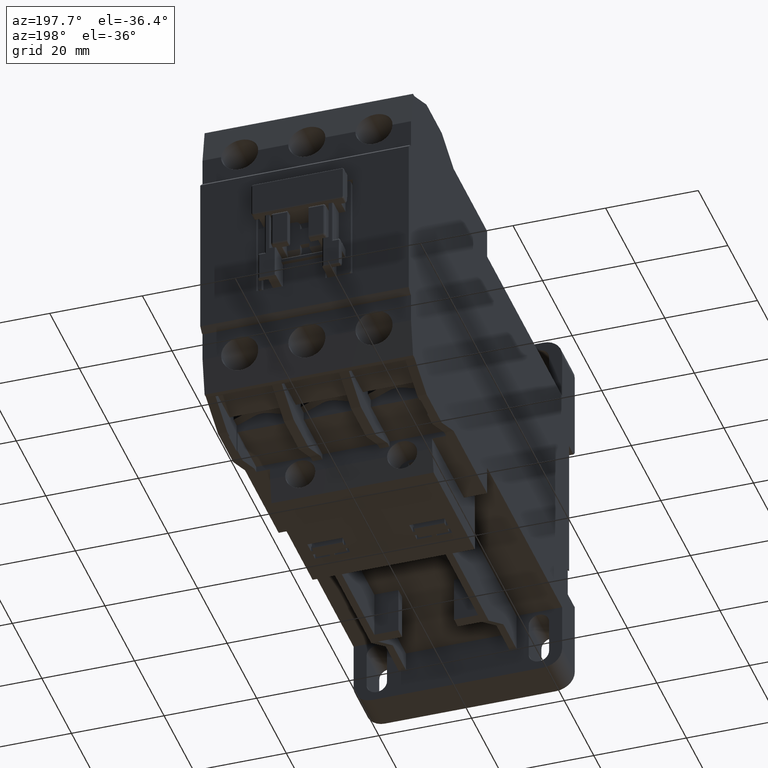
[diagram: clean part render]
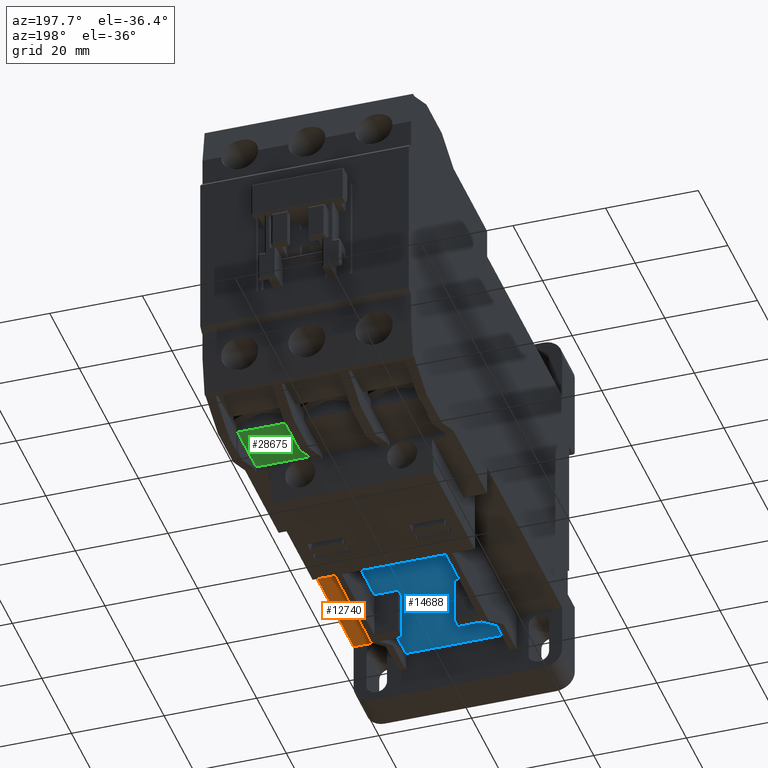
[diagram: same view with three faces highlighted in distinct colors, each labeled with its STEP entity id]
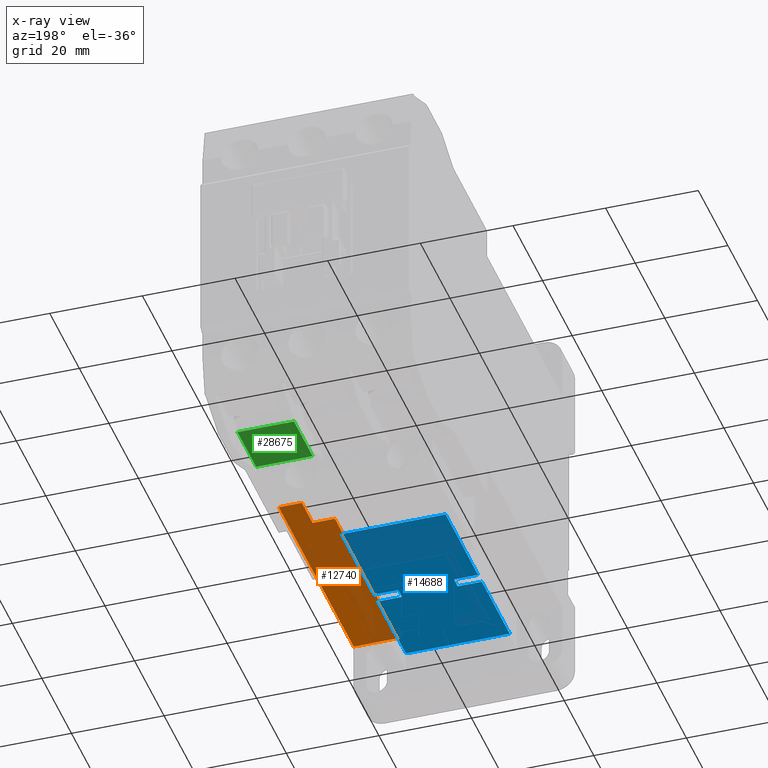
[diagram: x-ray of the same camera — body ghosted, the three highlighted faces saturated]
A machine part, auxiliary view with three faces highlighted in distinct colors.
The next image is the same camera in x-ray (body ghosted, the three faces saturated) — at least one of them is partly hidden behind the body in this view.
Their STEP definitions:

[orange] entity #12740 — the highlighted planar face has unit normal (0, 0, -1).
#727 = VERTEX_POINT ( 'NONE', #23788 ) ;
#1405 = VERTEX_POINT ( 'NONE', #19232 ) ;
#1644 = CARTESIAN_POINT ( 'NONE',  ( 0.6889763779527560139, -1.074803149606299302, -1.062992125984252079 ) ) ;
#2254 = VERTEX_POINT ( 'NONE', #1644 ) ;
#2517 = PLANE ( 'NONE',  #13512 ) ;
#3284 = VECTOR ( 'NONE', #20127, 39.37007874015748143 ) ;
#3428 = CARTESIAN_POINT ( 'NONE',  ( 0.6889763779527560139, -1.074803149606299302, -1.062992125984252079 ) ) ;
#4576 = VERTEX_POINT ( 'NONE', #30528 ) ;
#5642 = LINE ( 'NONE', #32897, #6613 ) ;
#6219 = CARTESIAN_POINT ( 'NONE',  ( -0.8858267716535432879, -0.7874015748031496509, -1.062992125984252079 ) ) ;
#6613 = VECTOR ( 'NONE', #30181, 39.37007874015748143 ) ;
#8238 = ORIENTED_EDGE ( 'NONE', *, *, #20831, .T. ) ;
#9056 = DIRECTION ( 'NONE',  ( 0.000000000000000000, 1.000000000000000000, 0.000000000000000000 ) ) ;
#10017 = VECTOR ( 'NONE', #17085, 39.37007874015748143 ) ;
#10472 = ORIENTED_EDGE ( 'NONE', *, *, #16488, .T. ) ;
#10496 = EDGE_LOOP ( 'NONE', ( #20482, #35519, #8238, #10472, #22441, #12716 ) ) ;
#10640 = CARTESIAN_POINT ( 'NONE',  ( 0.8858267716535432879, -2.783464566929133799, -1.062992125984252079 ) ) ;
#11215 = FACE_OUTER_BOUND ( 'NONE', #10496, .T. ) ;
#11309 = LINE ( 'NONE', #14374, #31353 ) ;
#11640 = LINE ( 'NONE', #6219, #3284 ) ;
#12042 = EDGE_CURVE ( 'NONE', #727, #1405, #22855, .T. ) ;
#12716 = ORIENTED_EDGE ( 'NONE', *, *, #12042, .F. ) ;
#12740 = ADVANCED_FACE ( 'NONE', ( #11215 ), #2517, .T. ) ;
#13512 = AXIS2_PLACEMENT_3D ( 'NONE', #33241, #27451, #21872 ) ;
#14374 = CARTESIAN_POINT ( 'NONE',  ( 0.5000000000000000000, -2.783464566929133799, -1.062992125984252079 ) ) ;
#14467 = LINE ( 'NONE', #3428, #19827 ) ;
#14793 = VECTOR ( 'NONE', #16230, 39.37007874015748143 ) ;
#16230 = DIRECTION ( 'NONE',  ( 0.000000000000000000, 1.000000000000000000, 1.368618127003397943E-16 ) ) ;
#16488 = EDGE_CURVE ( 'NONE', #4576, #19953, #11640, .T. ) ;
#17037 = VERTEX_POINT ( 'NONE', #29261 ) ;
#17085 = DIRECTION ( 'NONE',  ( 1.000000000000000000, 0.000000000000000000, 0.000000000000000000 ) ) ;
#18410 = CARTESIAN_POINT ( 'NONE',  ( 0.8858267716535432879, -0.7874015748031496509, -1.062992125984252079 ) ) ;
#18831 = EDGE_CURVE ( 'NONE', #727, #17037, #11309, .T. ) ;
#19232 = CARTESIAN_POINT ( 'NONE',  ( 0.8858267716535432879, -2.783464566929133799, -1.062992125984252079 ) ) ;
#19827 = VECTOR ( 'NONE', #9056, 39.37007874015748143 ) ;
#19953 = VERTEX_POINT ( 'NONE', #18410 ) ;
#20127 = DIRECTION ( 'NONE',  ( 1.000000000000000000, 0.000000000000000000, 0.000000000000000000 ) ) ;
#20482 = ORIENTED_EDGE ( 'NONE', *, *, #18831, .T. ) ;
#20831 = EDGE_CURVE ( 'NONE', #2254, #4576, #14467, .T. ) ;
#21841 = LINE ( 'NONE', #10640, #14793 ) ;
#21872 = DIRECTION ( 'NONE',  ( -1.000000000000000000, 0.000000000000000000, 0.000000000000000000 ) ) ;
#22441 = ORIENTED_EDGE ( 'NONE', *, *, #23619, .F. ) ;
#22855 = LINE ( 'NONE', #25539, #10017 ) ;
#23619 = EDGE_CURVE ( 'NONE', #1405, #19953, #21841, .T. ) ;
#23788 = CARTESIAN_POINT ( 'NONE',  ( 0.5000000000000000000, -2.783464566929133799, -1.062992125984252079 ) ) ;
#25364 = DIRECTION ( 'NONE',  ( 0.000000000000000000, 1.000000000000000000, 0.000000000000000000 ) ) ;
#25539 = CARTESIAN_POINT ( 'NONE',  ( -0.8858267716535432879, -2.783464566929133799, -1.062992125984252079 ) ) ;
#27451 = DIRECTION ( 'NONE',  ( 0.000000000000000000, 1.368618127003397943E-16, -1.000000000000000000 ) ) ;
#28614 = EDGE_CURVE ( 'NONE', #2254, #17037, #5642, .T. ) ;
#29261 = CARTESIAN_POINT ( 'NONE',  ( 0.5000000000000000000, -1.074803149606299302, -1.062992125984252079 ) ) ;
#30181 = DIRECTION ( 'NONE',  ( -1.000000000000000000, 0.000000000000000000, 0.000000000000000000 ) ) ;
#30528 = CARTESIAN_POINT ( 'NONE',  ( 0.6889763779527560139, -0.7874015748031496509, -1.062992125984252079 ) ) ;
#31353 = VECTOR ( 'NONE', #25364, 39.37007874015748143 ) ;
#32897 = CARTESIAN_POINT ( 'NONE',  ( 0.6889763779527560139, -1.074803149606299302, -1.062992125984252079 ) ) ;
#33241 = CARTESIAN_POINT ( 'NONE',  ( -0.8858267716535432879, -2.783464566929133799, -1.062992125984252079 ) ) ;
#35519 = ORIENTED_EDGE ( 'NONE', *, *, #28614, .F. ) ;

[blue] entity #14688 — the highlighted planar face has unit normal (0, 0, -1).
#396 = LINE ( 'NONE', #31272, #20747 ) ;
#573 = CARTESIAN_POINT ( 'NONE',  ( 0.2362204724409449064, -1.940944881889763662, -1.230314960629921295 ) ) ;
#705 = VERTEX_POINT ( 'NONE', #1754 ) ;
#920 = CARTESIAN_POINT ( 'NONE',  ( -0.4409448818897637734, -1.074803149606299302, -1.230314960629921295 ) ) ;
#942 = CARTESIAN_POINT ( 'NONE',  ( 0.4409448818897637734, -1.074803149606299302, -1.230314960629921295 ) ) ;
#1754 = CARTESIAN_POINT ( 'NONE',  ( -0.4409448818897637734, -1.940944881889763662, -1.230314960629921295 ) ) ;
#2085 = CARTESIAN_POINT ( 'NONE',  ( -0.4409448818897637734, -2.039370078740157410, -1.230314960629921295 ) ) ;
#2220 = EDGE_CURVE ( 'NONE', #705, #23098, #396, .T. ) ;
#2411 = CARTESIAN_POINT ( 'NONE',  ( 0.4409448818897637734, -1.074803149606299302, -1.230314960629921295 ) ) ;
#2430 = EDGE_CURVE ( 'NONE', #7779, #27982, #7963, .T. ) ;
#2626 = VECTOR ( 'NONE', #4530, 39.37007874015748143 ) ;
#2674 = VECTOR ( 'NONE', #3568, 39.37007874015748143 ) ;
#3358 = DIRECTION ( 'NONE',  ( 0.000000000000000000, 0.000000000000000000, -1.000000000000000000 ) ) ;
#3568 = DIRECTION ( 'NONE',  ( 0.000000000000000000, 1.000000000000000000, 0.000000000000000000 ) ) ;
#3618 = CARTESIAN_POINT ( 'NONE',  ( 0.4409448818897637734, -2.039370078740157410, -1.230314960629921295 ) ) ;
#4073 = LINE ( 'NONE', #20872, #24906 ) ;
#4530 = DIRECTION ( 'NONE',  ( 1.000000000000000000, 0.000000000000000000, 0.000000000000000000 ) ) ;
#4954 = LINE ( 'NONE', #29500, #6125 ) ;
#5155 = ORIENTED_EDGE ( 'NONE', *, *, #19669, .F. ) ;
#6125 = VECTOR ( 'NONE', #7656, 39.37007874015748143 ) ;
#6745 = VERTEX_POINT ( 'NONE', #942 ) ;
#6955 = LINE ( 'NONE', #33888, #13442 ) ;
#7064 = DIRECTION ( 'NONE',  ( 0.000000000000000000, 1.000000000000000000, 0.000000000000000000 ) ) ;
#7203 = VECTOR ( 'NONE', #22121, 39.37007874015748143 ) ;
#7644 = CARTESIAN_POINT ( 'NONE',  ( 0.4409448818897637734, -2.039370078740157410, -1.230314960629921295 ) ) ;
#7656 = DIRECTION ( 'NONE',  ( -1.000000000000000000, -1.334402673828314029E-15, 0.000000000000000000 ) ) ;
#7779 = VERTEX_POINT ( 'NONE', #19076 ) ;
#7963 = LINE ( 'NONE', #22024, #14409 ) ;
#8329 = VECTOR ( 'NONE', #11206, 39.37007874015748143 ) ;
#8611 = ORIENTED_EDGE ( 'NONE', *, *, #17740, .F. ) ;
#9156 = EDGE_CURVE ( 'NONE', #28219, #19370, #32183, .T. ) ;
#9732 = VECTOR ( 'NONE', #7064, 39.37007874015748143 ) ;
#11171 = EDGE_CURVE ( 'NONE', #27982, #33441, #6955, .T. ) ;
#11206 = DIRECTION ( 'NONE',  ( -9.178431089824377654E-17, -1.000000000000000000, 0.000000000000000000 ) ) ;
#11880 = DIRECTION ( 'NONE',  ( -3.469446951953620105E-16, -1.000000000000000000, 0.000000000000000000 ) ) ;
#12075 = LINE ( 'NONE', #7644, #29192 ) ;
#13256 = ORIENTED_EDGE ( 'NONE', *, *, #9156, .F. ) ;
#13442 = VECTOR ( 'NONE', #15748, 39.37007874015748143 ) ;
#13449 = CARTESIAN_POINT ( 'NONE',  ( 0.4409448818897637734, -1.940944881889763662, -1.230314960629921295 ) ) ;
#13733 = DIRECTION ( 'NONE',  ( 1.000000000000000000, 0.000000000000000000, 0.000000000000000000 ) ) ;
#13773 = ORIENTED_EDGE ( 'NONE', *, *, #30496, .F. ) ;
#14171 = ORIENTED_EDGE ( 'NONE', *, *, #16182, .F. ) ;
#14409 = VECTOR ( 'NONE', #13733, 39.37007874015748143 ) ;
#14560 = DIRECTION ( 'NONE',  ( 0.000000000000000000, -1.000000000000000000, 0.000000000000000000 ) ) ;
#14688 = ADVANCED_FACE ( 'NONE', ( #23047 ), #28802, .T. ) ;
#15067 = CARTESIAN_POINT ( 'NONE',  ( -0.2362204724409449064, -2.039370078740157410, -1.230314960629921295 ) ) ;
#15202 = CARTESIAN_POINT ( 'NONE',  ( 0.2362204724409449064, -1.940944881889763662, -1.230314960629921295 ) ) ;
#15748 = DIRECTION ( 'NONE',  ( 0.000000000000000000, 1.000000000000000000, 0.000000000000000000 ) ) ;
#16182 = EDGE_CURVE ( 'NONE', #34040, #6745, #25798, .T. ) ;
#16629 = CARTESIAN_POINT ( 'NONE',  ( -0.4409448818897637734, -2.039370078740157410, -1.230314960629921295 ) ) ;
#16727 = ORIENTED_EDGE ( 'NONE', *, *, #29196, .F. ) ;
#17368 = LINE ( 'NONE', #920, #30905 ) ;
#17377 = DIRECTION ( 'NONE',  ( 1.000000000000000000, 0.000000000000000000, 0.000000000000000000 ) ) ;
#17494 = VERTEX_POINT ( 'NONE', #21277 ) ;
#17685 = CARTESIAN_POINT ( 'NONE',  ( 0.4409448818897637734, -1.940944881889763662, -1.230314960629921295 ) ) ;
#17740 = EDGE_CURVE ( 'NONE', #23098, #28510, #4073, .T. ) ;
#18282 = LINE ( 'NONE', #15202, #2626 ) ;
#18319 = ORIENTED_EDGE ( 'NONE', *, *, #35235, .F. ) ;
#18672 = DIRECTION ( 'NONE',  ( -1.000000000000000000, 0.000000000000000000, 0.000000000000000000 ) ) ;
#18793 = VERTEX_POINT ( 'NONE', #2085 ) ;
#18917 = ORIENTED_EDGE ( 'NONE', *, *, #2430, .F. ) ;
#19076 = CARTESIAN_POINT ( 'NONE',  ( -0.4409448818897637734, -2.783464566929133799, -1.230314960629921295 ) ) ;
#19370 = VERTEX_POINT ( 'NONE', #573 ) ;
#19380 = CARTESIAN_POINT ( 'NONE',  ( 0.4409448818897637734, -2.783464566929133799, -1.230314960629921295 ) ) ;
#19669 = EDGE_CURVE ( 'NONE', #18793, #7779, #29807, .T. ) ;
#20631 = ORIENTED_EDGE ( 'NONE', *, *, #34683, .F. ) ;
#20747 = VECTOR ( 'NONE', #17377, 39.37007874015748143 ) ;
#20872 = CARTESIAN_POINT ( 'NONE',  ( -0.2362204724409449064, -1.940944881889763662, -1.230314960629921295 ) ) ;
#21277 = CARTESIAN_POINT ( 'NONE',  ( -0.4409448818897637734, -1.074803149606299302, -1.230314960629921295 ) ) ;
#22024 = CARTESIAN_POINT ( 'NONE',  ( -0.4409448818897637734, -2.783464566929133799, -1.230314960629921295 ) ) ;
#22121 = DIRECTION ( 'NONE',  ( -1.000000000000000000, 0.000000000000000000, 0.000000000000000000 ) ) ;
#22843 = ORIENTED_EDGE ( 'NONE', *, *, #11171, .F. ) ;
#23047 = FACE_OUTER_BOUND ( 'NONE', #32679, .T. ) ;
#23098 = VERTEX_POINT ( 'NONE', #31488 ) ;
#23132 = DIRECTION ( 'NONE',  ( 0.000000000000000000, -1.000000000000000000, 0.000000000000000000 ) ) ;
#24188 = ORIENTED_EDGE ( 'NONE', *, *, #29652, .F. ) ;
#24906 = VECTOR ( 'NONE', #11880, 39.37007874015748143 ) ;
#25798 = LINE ( 'NONE', #17685, #2674 ) ;
#26207 = CARTESIAN_POINT ( 'NONE',  ( 0.2362204724409449064, -2.039370078740157410, -1.230314960629921295 ) ) ;
#27706 = LINE ( 'NONE', #2411, #7203 ) ;
#27982 = VERTEX_POINT ( 'NONE', #19380 ) ;
#28219 = VERTEX_POINT ( 'NONE', #26207 ) ;
#28510 = VERTEX_POINT ( 'NONE', #15067 ) ;
#28802 = PLANE ( 'NONE',  #35031 ) ;
#29192 = VECTOR ( 'NONE', #18672, 39.37007874015748143 ) ;
#29196 = EDGE_CURVE ( 'NONE', #6745, #17494, #27706, .T. ) ;
#29500 = CARTESIAN_POINT ( 'NONE',  ( -0.2362204724409449064, -2.039370078740157410, -1.230314960629921295 ) ) ;
#29652 = EDGE_CURVE ( 'NONE', #19370, #34040, #18282, .T. ) ;
#29807 = LINE ( 'NONE', #16629, #8329 ) ;
#30496 = EDGE_CURVE ( 'NONE', #33441, #28219, #12075, .T. ) ;
#30812 = CARTESIAN_POINT ( 'NONE',  ( 0.000000000000000000, 0.000000000000000000, -1.230314960629921295 ) ) ;
#30905 = VECTOR ( 'NONE', #23132, 39.37007874015748143 ) ;
#31272 = CARTESIAN_POINT ( 'NONE',  ( -0.4409448818897637734, -1.940944881889763662, -1.230314960629921295 ) ) ;
#31488 = CARTESIAN_POINT ( 'NONE',  ( -0.2362204724409449064, -1.940944881889763662, -1.230314960629921295 ) ) ;
#31658 = CARTESIAN_POINT ( 'NONE',  ( 0.2362204724409449064, -2.039370078740157410, -1.230314960629921295 ) ) ;
#32183 = LINE ( 'NONE', #31658, #9732 ) ;
#32679 = EDGE_LOOP ( 'NONE', ( #5155, #18319, #8611, #35090, #20631, #16727, #14171, #24188, #13256, #13773, #22843, #18917 ) ) ;
#33441 = VERTEX_POINT ( 'NONE', #3618 ) ;
#33888 = CARTESIAN_POINT ( 'NONE',  ( 0.4409448818897637734, -2.783464566929133799, -1.230314960629921295 ) ) ;
#34040 = VERTEX_POINT ( 'NONE', #13449 ) ;
#34683 = EDGE_CURVE ( 'NONE', #17494, #705, #17368, .T. ) ;
#35031 = AXIS2_PLACEMENT_3D ( 'NONE', #30812, #3358, #14560 ) ;
#35090 = ORIENTED_EDGE ( 'NONE', *, *, #2220, .F. ) ;
#35235 = EDGE_CURVE ( 'NONE', #28510, #18793, #4954, .T. ) ;

[green] entity #28675 — the highlighted planar face has unit normal (0, 0, 1).
#3041 = VECTOR ( 'NONE', #28498, 39.37007874015748143 ) ;
#3173 = LINE ( 'NONE', #8786, #16894 ) ;
#4479 = CARTESIAN_POINT ( 'NONE',  ( 0.3267716535433071168, 0.05905511811023622659, -1.267716535433070835 ) ) ;
#5486 = DIRECTION ( 'NONE',  ( -1.000000000000000000, 0.000000000000000000, 0.000000000000000000 ) ) ;
#5834 = VERTEX_POINT ( 'NONE', #26390 ) ;
#7530 = LINE ( 'NONE', #21935, #11976 ) ;
#8786 = CARTESIAN_POINT ( 'NONE',  ( 0.000000000000000000, 0.5551181102362204856, -1.267716535433070835 ) ) ;
#10761 = VECTOR ( 'NONE', #16645, 39.37007874015748143 ) ;
#11100 = EDGE_CURVE ( 'NONE', #17055, #5834, #3173, .T. ) ;
#11610 = DIRECTION ( 'NONE',  ( 1.000000000000000000, 0.000000000000000000, 0.000000000000000000 ) ) ;
#11976 = VECTOR ( 'NONE', #5486, 39.37007874015748143 ) ;
#13843 = EDGE_CURVE ( 'NONE', #5834, #22339, #30701, .T. ) ;
#13900 = VERTEX_POINT ( 'NONE', #22421 ) ;
#14131 = ORIENTED_EDGE ( 'NONE', *, *, #18421, .T. ) ;
#14132 = FACE_OUTER_BOUND ( 'NONE', #23710, .T. ) ;
#14304 = CARTESIAN_POINT ( 'NONE',  ( 0.8070866141732283561, 0.05905511811023622659, -1.267716535433070835 ) ) ;
#14326 = PLANE ( 'NONE',  #23345 ) ;
#14862 = DIRECTION ( 'NONE',  ( 0.000000000000000000, 0.000000000000000000, 1.000000000000000000 ) ) ;
#16276 = EDGE_CURVE ( 'NONE', #22339, #13900, #7530, .T. ) ;
#16645 = DIRECTION ( 'NONE',  ( 0.000000000000000000, -1.000000000000000000, 0.000000000000000000 ) ) ;
#16894 = VECTOR ( 'NONE', #19250, 39.37007874015748143 ) ;
#17055 = VERTEX_POINT ( 'NONE', #31631 ) ;
#18223 = LINE ( 'NONE', #4479, #3041 ) ;
#18421 = EDGE_CURVE ( 'NONE', #13900, #17055, #18223, .T. ) ;
#19250 = DIRECTION ( 'NONE',  ( 1.000000000000000000, 0.000000000000000000, 0.000000000000000000 ) ) ;
#19484 = ORIENTED_EDGE ( 'NONE', *, *, #13843, .T. ) ;
#21935 = CARTESIAN_POINT ( 'NONE',  ( 0.8070866141732283561, 0.05905511811023622659, -1.267716535433070835 ) ) ;
#22339 = VERTEX_POINT ( 'NONE', #26838 ) ;
#22421 = CARTESIAN_POINT ( 'NONE',  ( 0.3267716535433071168, 0.05905511811023622659, -1.267716535433070835 ) ) ;
#23345 = AXIS2_PLACEMENT_3D ( 'NONE', #28019, #14862, #11610 ) ;
#23649 = ORIENTED_EDGE ( 'NONE', *, *, #11100, .T. ) ;
#23710 = EDGE_LOOP ( 'NONE', ( #14131, #23649, #19484, #32615 ) ) ;
#26390 = CARTESIAN_POINT ( 'NONE',  ( 0.8070866141732283561, 0.5551181102362204856, -1.267716535433070835 ) ) ;
#26838 = CARTESIAN_POINT ( 'NONE',  ( 0.8070866141732283561, 0.05905511811023622659, -1.267716535433070835 ) ) ;
#28019 = CARTESIAN_POINT ( 'NONE',  ( 0.000000000000000000, 0.000000000000000000, -1.267716535433070835 ) ) ;
#28498 = DIRECTION ( 'NONE',  ( 0.000000000000000000, 1.000000000000000000, 0.000000000000000000 ) ) ;
#28675 = ADVANCED_FACE ( 'NONE', ( #14132 ), #14326, .F. ) ;
#30701 = LINE ( 'NONE', #14304, #10761 ) ;
#31631 = CARTESIAN_POINT ( 'NONE',  ( 0.3267716535433071168, 0.5551181102362204856, -1.267716535433070835 ) ) ;
#32615 = ORIENTED_EDGE ( 'NONE', *, *, #16276, .T. ) ;